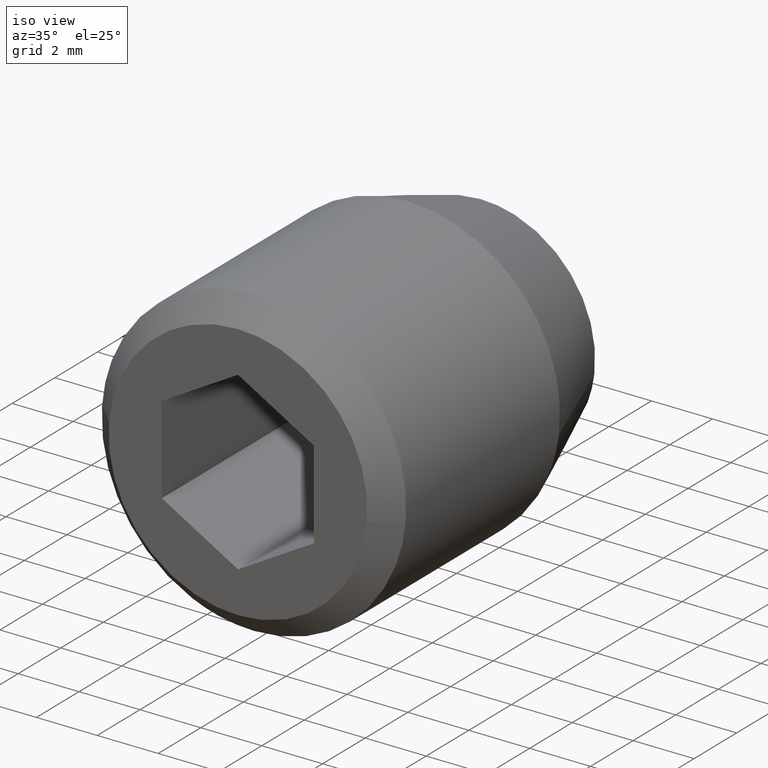
[diagram: clean part render]
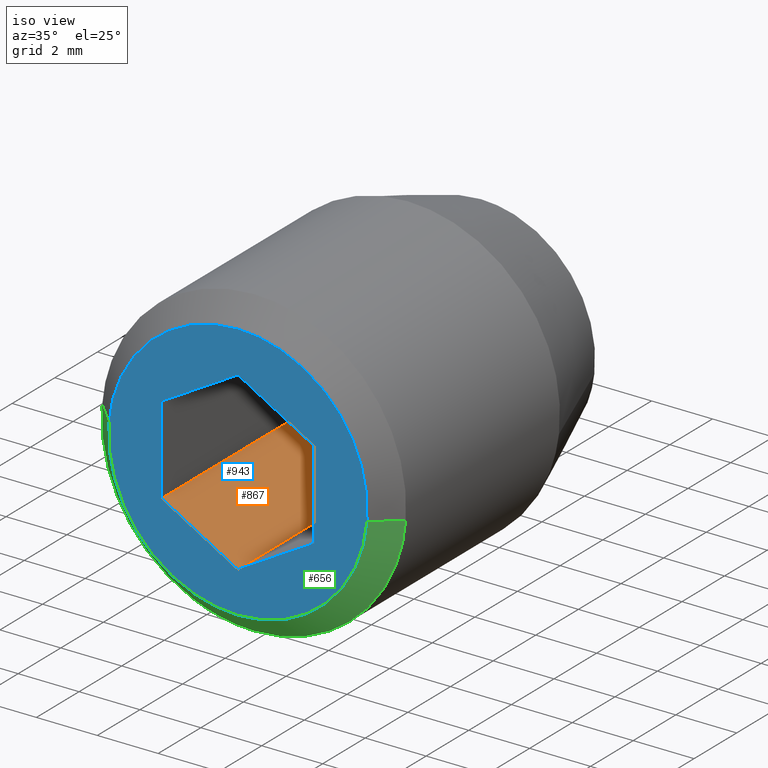
[diagram: same view with three faces highlighted in distinct colors, each labeled with its STEP entity id]
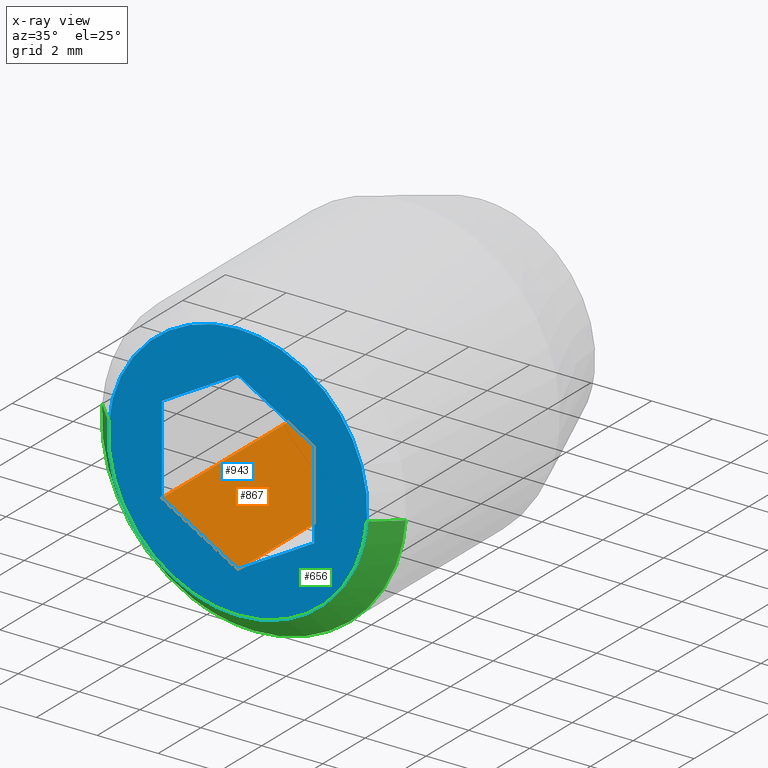
[diagram: x-ray of the same camera — body ghosted, the three highlighted faces saturated]
A machine part, iso view with three faces highlighted in distinct colors.
The next image is the same camera in x-ray (body ghosted, the three faces saturated) — at least one of them is partly hidden behind the body in this view.
Their STEP definitions:

[orange] entity #867 — the highlighted face is a freeform B-spline surface patch.
#738=CARTESIAN_POINT('',(-2.500000000000000,-5.400000000000000,-1.443376000000000));
#739=VERTEX_POINT('',#738);
#745=CARTESIAN_POINT('',(0.0,-5.400000000000000,-2.886751000000000));
#746=VERTEX_POINT('',#745);
#747=CARTESIAN_POINT('',(-2.500000000000000,-5.400000000000000,-1.443376000000000));
#748=CARTESIAN_POINT('',(0.0,-5.400000000000000,-2.886751000000000));
#749=QUASI_UNIFORM_CURVE('',1,(#747,#748),.UNSPECIFIED.,.F.,.U.);
#750=EDGE_CURVE('',#739,#746,#749,.T.);
#829=CARTESIAN_POINT('',(0.0,-11.400000000000000,-2.886751000000000));
#830=VERTEX_POINT('',#829);
#838=CARTESIAN_POINT('',(0.0,-5.400000000000000,-2.886751000000000));
#839=CARTESIAN_POINT('',(0.0,-11.400000000000000,-2.886751000000000));
#840=QUASI_UNIFORM_CURVE('',1,(#838,#839),.UNSPECIFIED.,.F.,.U.);
#841=EDGE_CURVE('',#746,#830,#840,.T.);
#846=CARTESIAN_POINT('',(0.124874971686296,-11.699699572668671,-2.958847564903100));
#847=CARTESIAN_POINT('',(-2.624875061093270,-11.699699572668671,-1.371279383477800));
#848=CARTESIAN_POINT('',(0.124874971686296,-5.100300320042968,-2.958847564903100));
#849=CARTESIAN_POINT('',(-2.624875061093270,-5.100300320042968,-1.371279383477800));
#850=B_SPLINE_SURFACE_WITH_KNOTS('',1,1,((#846,#848),(#847,#849)),.UNSPECIFIED.,.F.,.F.,.U.,(2,2),(2,2),(0.0,3.175137473156912),(0.0,6.599399252625706),.UNSPECIFIED.);
#851=CARTESIAN_POINT('',(-2.500000000000000,-11.400000000000000,-1.443376000000000));
#852=VERTEX_POINT('',#851);
#853=CARTESIAN_POINT('',(-2.500000000000000,-11.400000000000000,-1.443376000000000));
#854=CARTESIAN_POINT('',(0.0,-11.400000000000000,-2.886751000000000));
#855=QUASI_UNIFORM_CURVE('',1,(#853,#854),.UNSPECIFIED.,.F.,.U.);
#856=EDGE_CURVE('',#852,#830,#855,.T.);
#857=ORIENTED_EDGE('',*,*,#856,.T.);
#858=ORIENTED_EDGE('',*,*,#841,.F.);
#859=ORIENTED_EDGE('',*,*,#750,.F.);
#860=CARTESIAN_POINT('',(-2.500000000000000,-5.400000000000000,-1.443376000000000));
#861=CARTESIAN_POINT('',(-2.500000000000000,-11.400000000000000,-1.443376000000000));
#862=QUASI_UNIFORM_CURVE('',1,(#860,#861),.UNSPECIFIED.,.F.,.U.);
#863=EDGE_CURVE('',#739,#852,#862,.T.);
#864=ORIENTED_EDGE('',*,*,#863,.T.);
#865=EDGE_LOOP('',(#857,#858,#859,#864));
#866=FACE_OUTER_BOUND('',#865,.T.);
#867=ADVANCED_FACE('',(#866),#850,.F.);

[blue] entity #943 — the highlighted face is a freeform B-spline surface patch.
#606=CARTESIAN_POINT('',(0.0,-11.400000000000000,-4.250000000000001));
#607=VERTEX_POINT('',#606);
#608=CARTESIAN_POINT('',(4.236898668365824,-11.399999999999920,-0.333451156843921));
#609=VERTEX_POINT('',#608);
#610=CARTESIAN_POINT('',(0.0,-11.400000000000000,-4.250000000000001));
#611=CARTESIAN_POINT('',(3.928659589546316,-11.400000000000002,-4.250000000000002));
#612=CARTESIAN_POINT('',(4.236898668365824,-11.399999999999922,-0.333451156843921));
#620=(BOUNDED_CURVE()B_SPLINE_CURVE(2,(#610,#611,#612),.UNSPECIFIED.,.F.,.U.)B_SPLINE_CURVE_WITH_KNOTS((3,3),(0.0,0.236331300632721),.UNSPECIFIED.)CURVE()GEOMETRIC_REPRESENTATION_ITEM()RATIONAL_B_SPLINE_CURVE((1.0,0.723120658605251,0.969723356171719))REPRESENTATION_ITEM(''));
#621=EDGE_CURVE('',#607,#609,#620,.T.);
#623=CARTESIAN_POINT('',(-4.236898668365823,-11.399999999999929,0.333451156843920));
#624=VERTEX_POINT('',#623);
#625=CARTESIAN_POINT('',(-4.236898668365823,-11.399999999999924,0.333451156843920));
#626=CARTESIAN_POINT('',(-4.250000000000000,-11.400000000000000,0.166982954783170));
#627=CARTESIAN_POINT('',(-4.250000000000000,-11.400000000000000,-7.898711E-016));
#628=CARTESIAN_POINT('',(-4.249999999999999,-11.399999999999999,-4.250000000000002));
#629=CARTESIAN_POINT('',(0.0,-11.400000000000000,-4.250000000000001));
#637=(BOUNDED_CURVE()B_SPLINE_CURVE(2,(#625,#626,#627,#628,#629),.UNSPECIFIED.,.F.,.U.)B_SPLINE_CURVE_WITH_KNOTS((3,2,3),(0.736331300632721,0.750000000000000,1.0),.UNSPECIFIED.)CURVE()GEOMETRIC_REPRESENTATION_ITEM()RATIONAL_B_SPLINE_CURVE((0.969723356171719,0.983986122581296,1.0,0.707106781186548,1.0))REPRESENTATION_ITEM(''));
#638=EDGE_CURVE('',#624,#607,#637,.T.);
#675=CARTESIAN_POINT('',(0.0,-11.400000000000000,4.249999999999999));
#676=VERTEX_POINT('',#675);
#677=CARTESIAN_POINT('',(4.236898668365824,-11.399999999999922,-0.333451156843921));
#678=CARTESIAN_POINT('',(4.250000000000000,-11.399999999999999,-0.166982954783172));
#679=CARTESIAN_POINT('',(4.250000000000000,-11.400000000000000,-7.898711E-016));
#680=CARTESIAN_POINT('',(4.249999999999999,-11.399999999999999,4.249999999999998));
#681=CARTESIAN_POINT('',(0.0,-11.400000000000000,4.249999999999999));
#689=(BOUNDED_CURVE()B_SPLINE_CURVE(2,(#677,#678,#679,#680,#681),.UNSPECIFIED.,.F.,.U.)B_SPLINE_CURVE_WITH_KNOTS((3,2,3),(0.236331300632721,0.250000000000000,0.500000000000000),.UNSPECIFIED.)CURVE()GEOMETRIC_REPRESENTATION_ITEM()RATIONAL_B_SPLINE_CURVE((0.969723356171719,0.983986122581297,1.0,0.707106781186548,1.0))REPRESENTATION_ITEM(''));
#690=EDGE_CURVE('',#609,#676,#689,.T.);
#696=CARTESIAN_POINT('',(0.0,-11.400000000000000,4.249999999999999));
#697=CARTESIAN_POINT('',(-3.928659589546289,-11.400000000000000,4.249999999999999));
#698=CARTESIAN_POINT('',(-4.236898668365824,-11.399999999999929,0.333451156843920));
#706=(BOUNDED_CURVE()B_SPLINE_CURVE(2,(#696,#697,#698),.UNSPECIFIED.,.F.,.U.)B_SPLINE_CURVE_WITH_KNOTS((3,3),(0.500000000000000,0.736331300632719),.UNSPECIFIED.)CURVE()GEOMETRIC_REPRESENTATION_ITEM()RATIONAL_B_SPLINE_CURVE((1.0,0.723120658605252,0.969723356171717))REPRESENTATION_ITEM(''));
#707=EDGE_CURVE('',#676,#624,#706,.T.);
#779=CARTESIAN_POINT('',(2.500000000000000,-11.400000000000000,1.443376000000000));
#780=VERTEX_POINT('',#779);
#781=CARTESIAN_POINT('',(0.0,-11.400000000000000,2.886751000000000));
#782=VERTEX_POINT('',#781);
#783=CARTESIAN_POINT('',(2.500000000000000,-11.400000000000000,1.443376000000000));
#784=CARTESIAN_POINT('',(0.0,-11.400000000000000,2.886751000000000));
#785=QUASI_UNIFORM_CURVE('',1,(#783,#784),.UNSPECIFIED.,.F.,.U.);
#786=EDGE_CURVE('',#780,#782,#785,.T.);
#807=CARTESIAN_POINT('',(2.500000000000000,-11.400000000000000,-1.443376000000000));
#808=VERTEX_POINT('',#807);
#809=CARTESIAN_POINT('',(2.500000000000000,-11.400000000000000,-1.443376000000000));
#810=CARTESIAN_POINT('',(2.500000000000000,-11.400000000000000,1.443376000000000));
#811=QUASI_UNIFORM_CURVE('',1,(#809,#810),.UNSPECIFIED.,.F.,.U.);
#812=EDGE_CURVE('',#808,#780,#811,.T.);
#829=CARTESIAN_POINT('',(0.0,-11.400000000000000,-2.886751000000000));
#830=VERTEX_POINT('',#829);
#831=CARTESIAN_POINT('',(0.0,-11.400000000000000,-2.886751000000000));
#832=CARTESIAN_POINT('',(2.500000000000000,-11.400000000000000,-1.443376000000000));
#833=QUASI_UNIFORM_CURVE('',1,(#831,#832),.UNSPECIFIED.,.F.,.U.);
#834=EDGE_CURVE('',#830,#808,#833,.T.);
#851=CARTESIAN_POINT('',(-2.500000000000000,-11.400000000000000,-1.443376000000000));
#852=VERTEX_POINT('',#851);
#853=CARTESIAN_POINT('',(-2.500000000000000,-11.400000000000000,-1.443376000000000));
#854=CARTESIAN_POINT('',(0.0,-11.400000000000000,-2.886751000000000));
#855=QUASI_UNIFORM_CURVE('',1,(#853,#854),.UNSPECIFIED.,.F.,.U.);
#856=EDGE_CURVE('',#852,#830,#855,.T.);
#873=CARTESIAN_POINT('',(-2.500000000000000,-11.400000000000000,1.443376000000000));
#874=VERTEX_POINT('',#873);
#875=CARTESIAN_POINT('',(-2.500000000000000,-11.400000000000000,1.443376000000000));
#876=CARTESIAN_POINT('',(-2.500000000000000,-11.400000000000000,-1.443376000000000));
#877=QUASI_UNIFORM_CURVE('',1,(#875,#876),.UNSPECIFIED.,.F.,.U.);
#878=EDGE_CURVE('',#874,#852,#877,.T.);
#895=CARTESIAN_POINT('',(0.0,-11.400000000000000,2.886751000000000));
#896=CARTESIAN_POINT('',(-2.500000000000000,-11.400000000000000,1.443376000000000));
#897=QUASI_UNIFORM_CURVE('',1,(#895,#896),.UNSPECIFIED.,.F.,.U.);
#898=EDGE_CURVE('',#782,#874,#897,.T.);
#924=CARTESIAN_POINT('',(-4.673277938464875,-11.400000000000000,-4.674574983525351));
#925=CARTESIAN_POINT('',(-4.673277938464875,-11.400000000000000,4.674575211513116));
#926=CARTESIAN_POINT('',(4.673277938464874,-11.400000000000000,-4.674574983525351));
#927=CARTESIAN_POINT('',(4.673277938464874,-11.400000000000000,4.674575211513116));
#928=B_SPLINE_SURFACE_WITH_KNOTS('',1,1,((#924,#926),(#925,#927)),.UNSPECIFIED.,.F.,.F.,.U.,(2,2),(2,2),(0.0,9.349150195038467),(0.0,9.346555876929749),.UNSPECIFIED.);
#929=ORIENTED_EDGE('',*,*,#621,.T.);
#930=ORIENTED_EDGE('',*,*,#690,.T.);
#931=ORIENTED_EDGE('',*,*,#707,.T.);
#932=ORIENTED_EDGE('',*,*,#638,.T.);
#933=EDGE_LOOP('',(#929,#930,#931,#932));
#934=FACE_OUTER_BOUND('',#933,.T.);
#935=ORIENTED_EDGE('',*,*,#878,.F.);
#936=ORIENTED_EDGE('',*,*,#898,.F.);
#937=ORIENTED_EDGE('',*,*,#786,.F.);
#938=ORIENTED_EDGE('',*,*,#812,.F.);
#939=ORIENTED_EDGE('',*,*,#834,.F.);
#940=ORIENTED_EDGE('',*,*,#856,.F.);
#941=EDGE_LOOP('',(#935,#936,#937,#938,#939,#940));
#942=FACE_BOUND('',#941,.T.);
#943=ADVANCED_FACE('',(#934,#942),#928,.F.);

[green] entity #656 — the highlighted face is a freeform B-spline surface patch.
#256=CARTESIAN_POINT('',(-1.171615753951384,-10.650000000000000,-4.860793816352145));
#257=VERTEX_POINT('',#256);
#258=CARTESIAN_POINT('',(0.0,-10.650000000000000,-5.000000000000001));
#259=VERTEX_POINT('',#258);
#260=CARTESIAN_POINT('',(-1.171615753951385,-10.649999999999999,-4.860793816352145));
#261=CARTESIAN_POINT('',(-0.594077807411693,-10.650000000000002,-5.000000000000001));
#262=CARTESIAN_POINT('',(0.0,-10.650000000000000,-5.000000000000001));
#270=(BOUNDED_CURVE()B_SPLINE_CURVE(2,(#260,#261,#262),.UNSPECIFIED.,.F.,.U.)B_SPLINE_CURVE_WITH_KNOTS((3,3),(0.959962787477101,1.0),.UNSPECIFIED.)CURVE()GEOMETRIC_REPRESENTATION_ITEM()RATIONAL_B_SPLINE_CURVE((0.921211023593703,0.953093487807399,1.0))REPRESENTATION_ITEM(''));
#271=EDGE_CURVE('',#257,#259,#270,.T.);
#342=CARTESIAN_POINT('',(-4.990674017282300,-10.650000000000000,0.305242286099373));
#343=VERTEX_POINT('',#342);
#349=CARTESIAN_POINT('',(-4.984586668665658,-10.649999999999951,0.392295478639601));
#350=VERTEX_POINT('',#349);
#351=CARTESIAN_POINT('',(-4.984586668665658,-10.649999999999951,0.392295478639601));
#352=CARTESIAN_POINT('',(-4.988010211797215,-10.649999999999995,0.348795238686368));
#353=CARTESIAN_POINT('',(-4.990674017282301,-10.650000000000006,0.305242286099373));
#361=(BOUNDED_CURVE()B_SPLINE_CURVE(2,(#351,#352,#353),.UNSPECIFIED.,.F.,.U.)B_SPLINE_CURVE_WITH_KNOTS((3,3),(0.736331300632741,0.739332990701424),.UNSPECIFIED.)CURVE()GEOMETRIC_REPRESENTATION_ITEM()RATIONAL_B_SPLINE_CURVE((0.969723356171762,0.972855505261679,0.976072102667240))REPRESENTATION_ITEM(''));
#362=EDGE_CURVE('',#350,#343,#361,.T.);
#379=CARTESIAN_POINT('',(4.984586668665658,-10.649999999999951,-0.392295478639601));
#380=VERTEX_POINT('',#379);
#396=CARTESIAN_POINT('',(0.0,-10.650000000000000,-5.000000000000001));
#397=CARTESIAN_POINT('',(4.621952458290349,-10.650000000000000,-5.0));
#398=CARTESIAN_POINT('',(4.984586668665658,-10.649999999999949,-0.392295478639601));
#406=(BOUNDED_CURVE()B_SPLINE_CURVE(2,(#396,#397,#398),.UNSPECIFIED.,.F.,.U.)B_SPLINE_CURVE_WITH_KNOTS((3,3),(0.0,0.236331300632741),.UNSPECIFIED.)CURVE()GEOMETRIC_REPRESENTATION_ITEM()RATIONAL_B_SPLINE_CURVE((1.0,0.723120658605227,0.969723356171762))REPRESENTATION_ITEM(''));
#407=EDGE_CURVE('',#259,#380,#406,.T.);
#426=CARTESIAN_POINT('',(-4.990674017282300,-10.650000000000000,0.305242286099373));
#427=CARTESIAN_POINT('',(-5.000000000000001,-10.650000000000004,0.152763403764020));
#428=CARTESIAN_POINT('',(-5.0,-10.650000000000000,-7.898711E-016));
#429=CARTESIAN_POINT('',(-4.999999999999999,-10.650000000000002,-3.938023696015475));
#430=CARTESIAN_POINT('',(-1.171615753951385,-10.649999999999999,-4.860793816352145));
#438=(BOUNDED_CURVE()B_SPLINE_CURVE(2,(#426,#427,#428,#429,#430),.UNSPECIFIED.,.F.,.U.)B_SPLINE_CURVE_WITH_KNOTS((3,2,3),(0.739332990701424,0.750000000000000,0.959962787477101),.UNSPECIFIED.)CURVE()GEOMETRIC_REPRESENTATION_ITEM()RATIONAL_B_SPLINE_CURVE((0.976072102667239,0.987502821245708,1.0,0.754013293379149,0.921211023593703))REPRESENTATION_ITEM(''));
#439=EDGE_CURVE('',#343,#257,#438,.T.);
#588=CARTESIAN_POINT('',(4.218206468358297,-11.418749999999999,-0.331980048798447));
#589=CARTESIAN_POINT('',(3.886226419559850,-11.418750000000005,-4.550186517156744));
#590=CARTESIAN_POINT('',(-0.331980048798447,-11.418749999999999,-4.218206468358297));
#591=CARTESIAN_POINT('',(-4.550186517156743,-11.418750000000005,-3.886226419559850));
#592=CARTESIAN_POINT('',(-4.218206468358297,-11.418749999999999,0.331980048798446));
#593=CARTESIAN_POINT('',(5.003746173673324,-10.630781250000000,-0.393803364385248));
#594=CARTESIAN_POINT('',(4.609942809288076,-10.630781249999998,-5.397549538058573));
#595=CARTESIAN_POINT('',(-0.393803364385247,-10.630781250000000,-5.003746173673325));
#596=CARTESIAN_POINT('',(-5.397549538058571,-10.630781249999998,-4.609942809288078));
#597=CARTESIAN_POINT('',(-5.003746173673324,-10.630781250000000,0.393803364385247));
#605=(BOUNDED_SURFACE()B_SPLINE_SURFACE(2,1,((#588,#593),(#589,#594),(#590,#595),(#591,#596),(#592,#597)),.UNSPECIFIED.,.F.,.F.,.U.)B_SPLINE_SURFACE_WITH_KNOTS((3,2,3),(2,2),(0.0,8.316113915069336,16.632227830138671),(0.0,1.0),.UNSPECIFIED.)GEOMETRIC_REPRESENTATION_ITEM()RATIONAL_B_SPLINE_SURFACE(((1.0,1.0),(0.707106781186548,0.707106781186548),(1.0,1.0),(0.707106781186548,0.707106781186548),(1.0,1.0)))REPRESENTATION_ITEM('')SURFACE());
#606=CARTESIAN_POINT('',(0.0,-11.400000000000000,-4.250000000000001));
#607=VERTEX_POINT('',#606);
#608=CARTESIAN_POINT('',(4.236898668365824,-11.399999999999920,-0.333451156843921));
#609=VERTEX_POINT('',#608);
#610=CARTESIAN_POINT('',(0.0,-11.400000000000000,-4.250000000000001));
#611=CARTESIAN_POINT('',(3.928659589546316,-11.400000000000002,-4.250000000000002));
#612=CARTESIAN_POINT('',(4.236898668365824,-11.399999999999922,-0.333451156843921));
#620=(BOUNDED_CURVE()B_SPLINE_CURVE(2,(#610,#611,#612),.UNSPECIFIED.,.F.,.U.)B_SPLINE_CURVE_WITH_KNOTS((3,3),(0.0,0.236331300632721),.UNSPECIFIED.)CURVE()GEOMETRIC_REPRESENTATION_ITEM()RATIONAL_B_SPLINE_CURVE((1.0,0.723120658605251,0.969723356171719))REPRESENTATION_ITEM(''));
#621=EDGE_CURVE('',#607,#609,#620,.T.);
#622=ORIENTED_EDGE('',*,*,#621,.F.);
#623=CARTESIAN_POINT('',(-4.236898668365823,-11.399999999999929,0.333451156843920));
#624=VERTEX_POINT('',#623);
#625=CARTESIAN_POINT('',(-4.236898668365823,-11.399999999999924,0.333451156843920));
#626=CARTESIAN_POINT('',(-4.250000000000000,-11.400000000000000,0.166982954783170));
#627=CARTESIAN_POINT('',(-4.250000000000000,-11.400000000000000,-7.898711E-016));
#628=CARTESIAN_POINT('',(-4.249999999999999,-11.399999999999999,-4.250000000000002));
#629=CARTESIAN_POINT('',(0.0,-11.400000000000000,-4.250000000000001));
#637=(BOUNDED_CURVE()B_SPLINE_CURVE(2,(#625,#626,#627,#628,#629),.UNSPECIFIED.,.F.,.U.)B_SPLINE_CURVE_WITH_KNOTS((3,2,3),(0.736331300632721,0.750000000000000,1.0),.UNSPECIFIED.)CURVE()GEOMETRIC_REPRESENTATION_ITEM()RATIONAL_B_SPLINE_CURVE((0.969723356171719,0.983986122581296,1.0,0.707106781186548,1.0))REPRESENTATION_ITEM(''));
#638=EDGE_CURVE('',#624,#607,#637,.T.);
#639=ORIENTED_EDGE('',*,*,#638,.F.);
#640=CARTESIAN_POINT('',(-4.236898668365823,-11.399999999999929,0.333451156843920));
#641=CARTESIAN_POINT('',(-4.984586668665658,-10.649999999999951,0.392295478639601));
#642=QUASI_UNIFORM_CURVE('',1,(#640,#641),.UNSPECIFIED.,.F.,.U.);
#643=EDGE_CURVE('',#624,#350,#642,.T.);
#644=ORIENTED_EDGE('',*,*,#643,.T.);
#645=ORIENTED_EDGE('',*,*,#362,.T.);
#646=ORIENTED_EDGE('',*,*,#439,.T.);
#647=ORIENTED_EDGE('',*,*,#271,.T.);
#648=ORIENTED_EDGE('',*,*,#407,.T.);
#649=CARTESIAN_POINT('',(4.236898668365824,-11.399999999999920,-0.333451156843921));
#650=CARTESIAN_POINT('',(4.984586668665658,-10.649999999999951,-0.392295478639601));
#651=QUASI_UNIFORM_CURVE('',1,(#649,#650),.UNSPECIFIED.,.F.,.U.);
#652=EDGE_CURVE('',#609,#380,#651,.T.);
#653=ORIENTED_EDGE('',*,*,#652,.F.);
#654=EDGE_LOOP('',(#622,#639,#644,#645,#646,#647,#648,#653));
#655=FACE_OUTER_BOUND('',#654,.T.);
#656=ADVANCED_FACE('',(#655),#605,.T.);